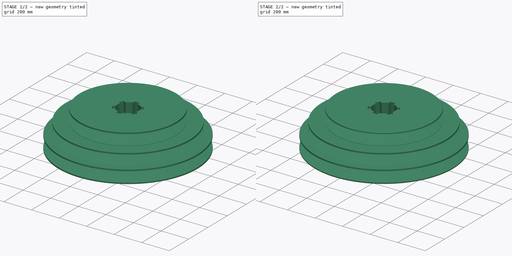
[diagram: build sequence overview — one tinted view per stage of 2, left to right]
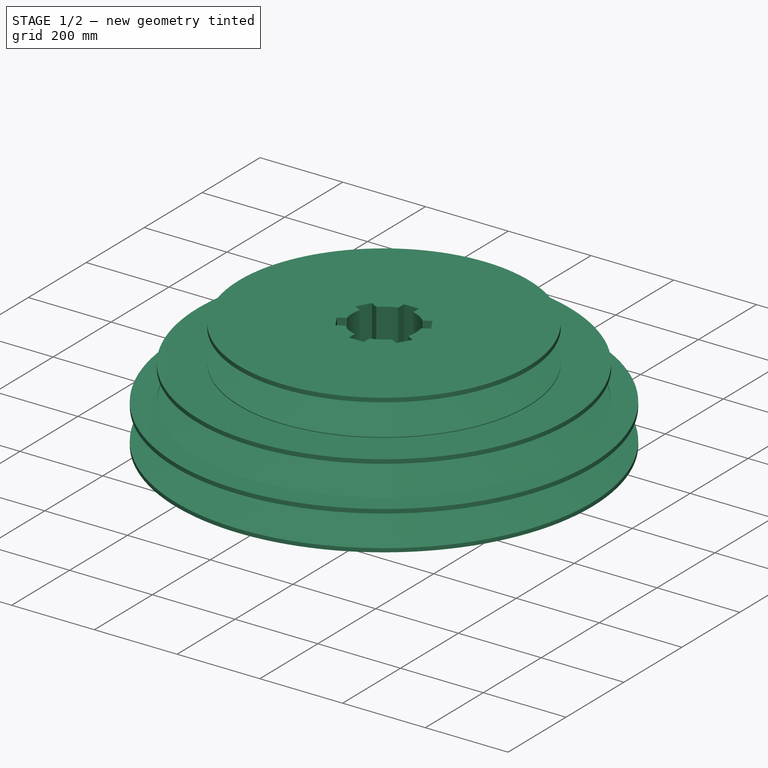
[diagram: stage 1 of 2 — iso view after this stage's code; geometry added in this stage tinted green]
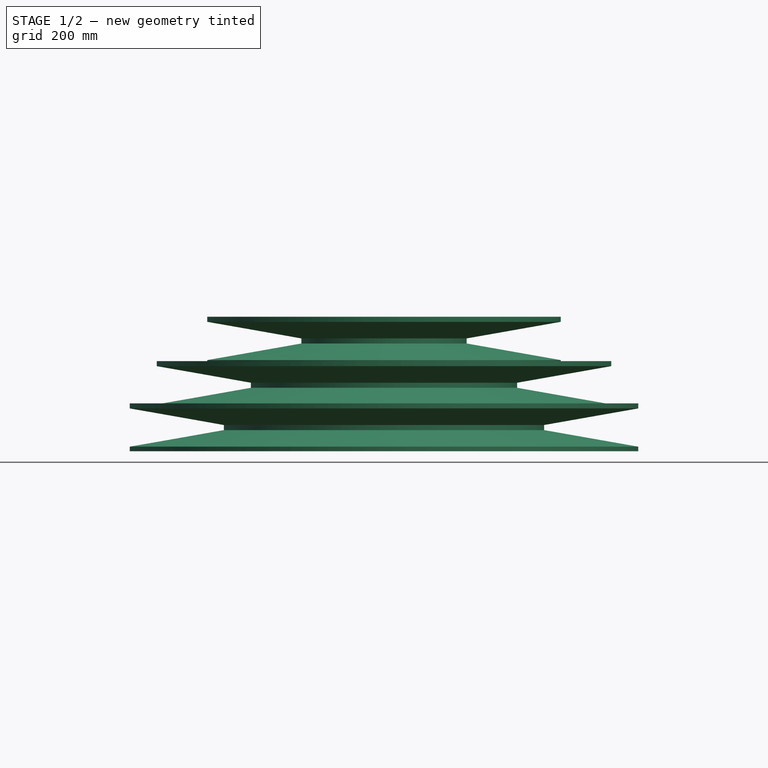
[diagram: stage 1 of 2 — front view after this stage's code; geometry added in this stage tinted green]
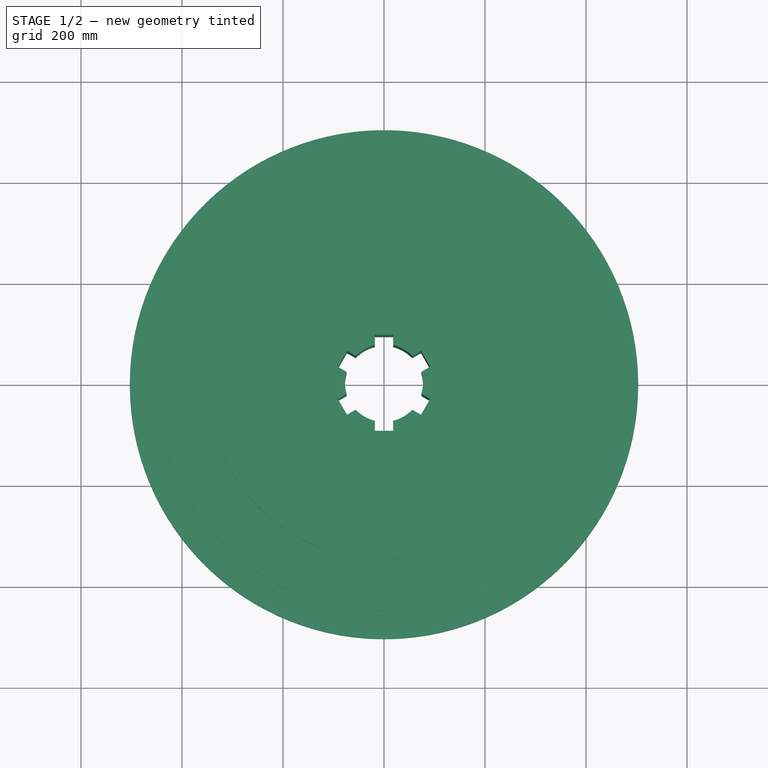
[diagram: stage 1 of 2 — top view after this stage's code; geometry added in this stage tinted green]
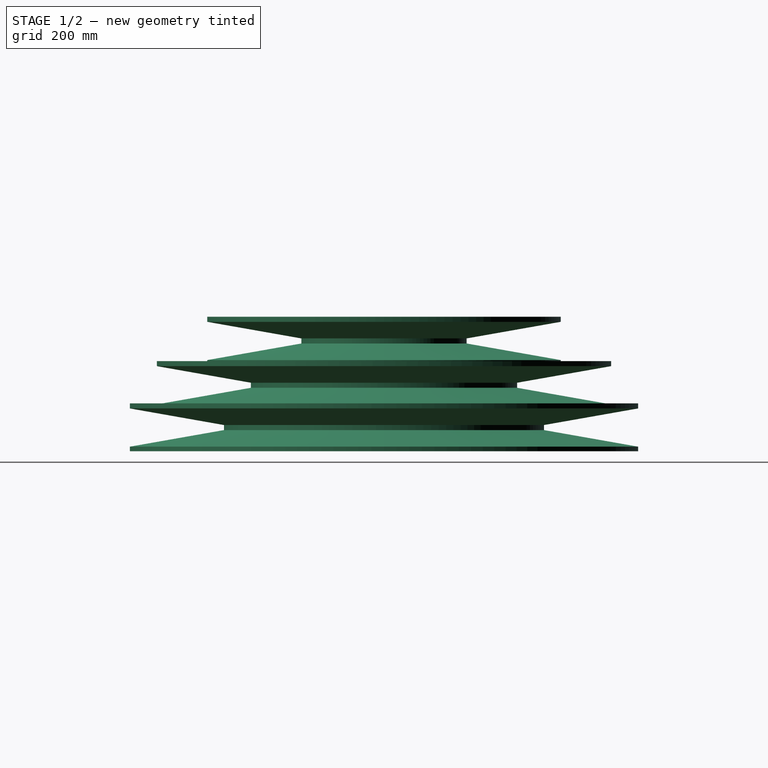
[diagram: stage 1 of 2 — right view after this stage's code; geometry added in this stage tinted green]
FCSTD DOCUMENT  (FreeCAD 0.21R33771 (Git))
Label: shkiv2
License: All rights reserved
LicenseURL: https://en.wikipedia.org/wiki/All_rights_reserved
objects: Sketcher::SketchObject×2, PartDesign::Chamfer×2, PartDesign::Revolution×1, PartDesign::Pocket×1, PartDesign::Body×1
note: 11 computed .brp shape members not serialized (recipe doc carries the construction recipe); baked Part::Feature solids carry a one-line shape summary decoded from their .brp

FEATURE [Sketcher::SketchObject] Sketch
  FullyConstrained = false
  MapMode = 5
  Placement = pos=(0,0,0) rot=(1,0,0;1.5708rad)
  Support = -> [XZ_Plane]
  sketch-geometry (20):
    g0: LineSegment StartX=0 StartY=266.224 StartZ=0 EndX=-350 EndY=266.224 EndZ=0
    g1: LineSegment StartX=-350 StartY=266.224 StartZ=0 EndX=-350 EndY=256.224 EndZ=0
    g2: LineSegment StartX=-350 StartY=256.224 StartZ=0 EndX=-163.581 EndY=223.354 EndZ=0
    g3: LineSegment StartX=-163.581 StartY=223.354 StartZ=0 EndX=-163.581 EndY=213.354 EndZ=0
    g4: LineSegment StartX=-163.581 StartY=213.354 StartZ=0 EndX=-350 EndY=180.483 EndZ=0
    g5: LineSegment StartX=-350 StartY=180.483 StartZ=0 EndX=-350 EndY=178.483 EndZ=0
    g6: LineSegment StartX=-350 StartY=178.483 StartZ=0 EndX=-450 EndY=178.483 EndZ=0
    g7: LineSegment StartX=-450 StartY=178.483 StartZ=0 EndX=-450 EndY=168.483 EndZ=0
    g8: LineSegment StartX=-450 StartY=168.483 StartZ=0 EndX=-263.581 EndY=135.612 EndZ=0
    g9: LineSegment StartX=-263.581 StartY=135.612 StartZ=0 EndX=-263.581 EndY=125.612 EndZ=0
    g10: LineSegment StartX=-263.581 StartY=125.612 StartZ=0 EndX=-450 EndY=92.7414 EndZ=0
    g11: LineSegment StartX=-450 StartY=92.7414 StartZ=0 EndX=-450 EndY=94.7414 EndZ=0
    g12: LineSegment StartX=-450 StartY=94.7414 StartZ=0 EndX=-503.432 EndY=94.7414 EndZ=0
    g13: LineSegment StartX=-503.432 StartY=94.7414 StartZ=0 EndX=-503.432 EndY=84.7414 EndZ=0
    g14: LineSegment StartX=-503.432 StartY=84.7414 StartZ=0 EndX=-317.013 EndY=51.8707 EndZ=0
    g15: LineSegment StartX=-317.013 StartY=51.8707 StartZ=0 EndX=-317.013 EndY=41.8707 EndZ=0
    g16: LineSegment StartX=-317.013 StartY=41.8707 StartZ=0 EndX=-503.432 EndY=9 EndZ=0
    g17: LineSegment StartX=-503.432 StartY=0 StartZ=0 EndX=0 EndY=0 EndZ=0
    g18: LineSegment StartX=0 StartY=266.224 StartZ=0 EndX=0 EndY=0 EndZ=0
    g19: LineSegment StartX=-503.432 StartY=9 StartZ=0 EndX=-503.432 EndY=0 EndZ=0
  constraints (58):
    c: PointOnObject(g0,g-2)
    c: Horizontal(g0)
    c: Coincident(g1,g0)
    c: Vertical(g1)
    c: Coincident(g2,g1)
    c: Coincident(g3,g2)
    c: Vertical(g3)
    c: Horizontal(g6)
    c: Coincident(g10,g9)
    c: Vertical(g11)
    c: Coincident(g12,g11)
    c: Horizontal(g12)
    c: Coincident(g13,g12)
    c: Vertical(g13)
    c: Coincident(g14,g13)
    c: Coincident(g15,g14)
    c: Vertical(g15)
    c: Horizontal(g17)
    c: Coincident(g18,g0)
    c: Coincident(g17,g18)
    c: PointOnObject(g17,g-2)
    c: Vertical(g9)
    c: Vertical(g5)
    c: Vertical(g7)
    c: DistanceY(g1,g1) = 10
    c: Equal(g1,g3)
    c: Equal(g3,g7)
    c: Equal(g7,g9)
    c: Equal(g9,g13)
    c: Equal(g13,g15)
    c: Coincident(g7,g8)
    c: Coincident(g8,g9)
    c: Coincident(g16,g15)
    c: Coincident(g5,g6)
    c: Coincident(g19,g16)
    c: Coincident(g19,g17)
    c: Vertical(g19)
    c: DistanceY(g19,g19) = 9
    c: Coincident(g3,g4)
    c: Equal(g8,g10)
    c: Equal(g10,g14)
    c: Equal(g14,g16)
    c: Equal(g16,g4)
    c: Equal(g4,g2)
    c: Angle(g2,g3) = 1.74533
    c: Angle(g3,g4) = 1.74533
    c: Coincident(g6,g7)
    c: Coincident(g4,g5)
    c: Coincident(g10,g11)
    c: Angle(g8,g9) = 1.74533
    c: Angle(g9,g10) = 1.74533
    c: Angle(g14,g15) = 1.74533
    c: Angle(g15,g16) = 1.74533
    c: Equal(g5,g11)
    c: DistanceY(g5,g4) = 2
    c: Distance(g0) = 350
    c: Distance(g6,g18) = 450
    c: PointOnObject(g17,g-1)
FEATURE [PartDesign::Revolution] Revolution
  Angle = 360
  Axis = (0,-2e-16,1)
  Base = (0,0,0)
  Midplane = true
  Placement = pos=(0,0,0) rot=(1,0,0;1.5708rad)
  Profile = -> Sketch
  ReferenceAxis = -> Sketch [V_Axis]
FEATURE [Sketcher::SketchObject] Sketch001
  FullyConstrained = false
  MapMode = 5
  Placement = pos=(0,-5.91e-14,266.224) rot=(0,0,1;3.14159rad)
  Support = -> [Revolution]
  sketch-geometry (27):
    g0: ArcOfCircle CenterX=0 CenterY=0 CenterZ=0 NormalX=0 NormalY=0 NormalZ=1 AngleXU=0 Radius=77.189 StartAngle=5.99597 EndAngle=6.5704
    g1: LineSegment StartX=18.0768 StartY=-94.9989 StartZ=0 EndX=18.0768 EndY=-75.0424 EndZ=0
    g2: LineSegment StartX=18.0768 StartY=94.9989 StartZ=0 EndX=-18.0768 EndY=94.9989 EndZ=0
    g3: LineSegment StartX=-18.0768 StartY=94.9989 StartZ=0 EndX=-18.0768 EndY=75.0424 EndZ=0
    g4: LineSegment StartX=-18.0768 StartY=-94.9989 StartZ=0 EndX=18.0768 EndY=-94.9989 EndZ=0
    g5: GeomPoint X=0 Y=0 Z=0
    g6: LineSegment StartX=-73.233 StartY=-63.1544 StartZ=0 EndX=-55.9502 EndY=-53.1762 EndZ=0
    g7: LineSegment StartX=91.3099 StartY=31.8445 StartZ=0 EndX=73.233 EndY=63.1544 EndZ=0
    g8: LineSegment StartX=73.233 StartY=63.1544 StartZ=0 EndX=55.9502 EndY=53.1762 EndZ=0
    g9: LineSegment StartX=-91.3099 StartY=-31.8445 StartZ=0 EndX=-73.233 EndY=-63.1544 EndZ=0
    g10: GeomPoint X=0 Y=0 Z=0
    g11: LineSegment StartX=91.3099 StartY=-31.8445 StartZ=0 EndX=74.0271 EndY=-21.8662 EndZ=0
    g12: LineSegment StartX=-91.3099 StartY=31.8445 StartZ=0 EndX=-74.0271 EndY=21.8662 EndZ=0
    g13: LineSegment StartX=73.233 StartY=-63.1544 StartZ=0 EndX=91.3099 EndY=-31.8445 EndZ=0
    g14: GeomPoint X=0 Y=0 Z=0
    g15: LineSegment StartX=55.9502 StartY=-53.1762 StartZ=0 EndX=73.233 EndY=-63.1544 EndZ=0
    g16: LineSegment StartX=-18.0768 StartY=-75.0424 StartZ=0 EndX=-18.0768 EndY=-94.9989 EndZ=0
    g17: LineSegment StartX=-74.0271 StartY=-21.8662 StartZ=0 EndX=-91.3099 EndY=-31.8445 EndZ=0
    g18: ArcOfCircle CenterX=0 CenterY=0 CenterZ=0 NormalX=0 NormalY=0 NormalZ=1 AngleXU=0 Radius=77.189 StartAngle=4.94877 EndAngle=5.5232
    g19: ArcOfCircle CenterX=0 CenterY=0 CenterZ=0 NormalX=0 NormalY=0 NormalZ=1 AngleXU=0 Radius=77.189 StartAngle=3.90158 EndAngle=4.476
    g20: LineSegment StartX=74.0271 StartY=21.8662 StartZ=0 EndX=91.3099 EndY=31.8445 EndZ=0
    g21: LineSegment StartX=18.0768 StartY=75.0424 StartZ=0 EndX=18.0768 EndY=94.9989 EndZ=0
    g22: LineSegment StartX=-55.9502 StartY=53.1762 StartZ=0 EndX=-73.233 EndY=63.1544 EndZ=0
    g23: ArcOfCircle CenterX=0 CenterY=0 CenterZ=0 NormalX=0 NormalY=0 NormalZ=1 AngleXU=0 Radius=77.189 StartAngle=0.759983 EndAngle=1.33441
    g24: ArcOfCircle CenterX=0 CenterY=0 CenterZ=0 NormalX=0 NormalY=0 NormalZ=1 AngleXU=0 Radius=77.189 StartAngle=2.85438 EndAngle=3.42881
    g25: ArcOfCircle CenterX=0 CenterY=0 CenterZ=0 NormalX=0 NormalY=0 NormalZ=1 AngleXU=0 Radius=77.189 StartAngle=1.80718 EndAngle=2.38161
    g26: LineSegment StartX=-91.3099 StartY=31.8445 StartZ=0 EndX=-73.233 EndY=63.1544 EndZ=0
  constraints (71):
    c: Coincident(g0,g-1)
    c: Coincident(g21,g2)
    c: Coincident(g2,g3)
    c: Coincident(g16,g4)
    c: Coincident(g4,g1)
    c: Symmetric(g2,g1,g5)
    c: Coincident(g5,g0)
    c: Coincident(g20,g7)
    c: Coincident(g7,g8)
    c: Coincident(g17,g9)
    c: Coincident(g9,g6)
    c: Symmetric(g7,g6,g10)
    c: Coincident(g10,g0)
    c: Coincident(g15,g13)
    c: Coincident(g13,g11)
    c: Symmetric(g12,g11,g14)
    c: Coincident(g14,g0)
    c: Vertical(g1)
    c: Vertical(g3)
    c: Angle(g-2,g9) = 0.523599
    c: Angle(g13,g-2) = 0.523599
    c: Coincident(g15,g18)
    c: PointOnObject(g12,g0)
    c: Coincident(g19,g16)
    c: Coincident(g18,g1)
    c: Coincident(g0,g18)
    c: Coincident(g24,g17)
    c: Coincident(g19,g6)
    c: Coincident(g0,g19)
    c: Coincident(g11,g0)
    c: Coincident(g0,g20)
    c: Coincident(g0,g23)
    c: PointOnObject(g24,g12)
    c: Coincident(g23,g24)
    c: Coincident(g22,g25)
    c: Coincident(g8,g23)
    c: Coincident(g23,g21)
    c: Coincident(g25,g3)
    c: Coincident(g23,g25)
    c: Equal(g23,g0)
    c: Equal(g0,g18)
    c: Equal(g18,g19)
    c: Equal(g19,g24)
    c: Equal(g12,g22)
    c: Equal(g22,g3)
    c: Equal(g3,g21)
    c: Equal(g21,g8)
    c: Equal(g8,g20)
    c: Equal(g20,g11)
    c: Equal(g11,g15)
    c: Equal(g15,g1)
    c: Equal(g1,g16)
    c: Equal(g16,g6)
    c: Equal(g6,g17)
    c: Equal(g2,g7)
    c: Equal(g7,g13)
    c: Equal(g13,g4)
    c: Equal(g4,g9)
    c: Perpendicular(g16,g4)
    c: Perpendicular(g4,g1)
    c: Perpendicular(g9,g6)
    c: Perpendicular(g9,g17)
    c: Perpendicular(g13,g15)
    c: Perpendicular(g13,g11)
    c: Coincident(g26,g12)
    c: Coincident(g26,g22)
    c: Equal(g26,g2)
    c: Perpendicular(g26,g12)
    c: Perpendicular(g26,g22)
    c: Perpendicular(g7,g8)
    c: Horizontal(g2)
FEATURE [PartDesign::Pocket] Pocket
  BaseFeature = -> Revolution
  Direction = (0,2e-16,-1)
  Length = 5
  Length2 = 5
  Placement = pos=(0,0,0) rot=(1,0,0;1.5708rad)
  Profile = -> Sketch001
  ReferenceAxis = -> Sketch001 [N_Axis]
  Type = 1
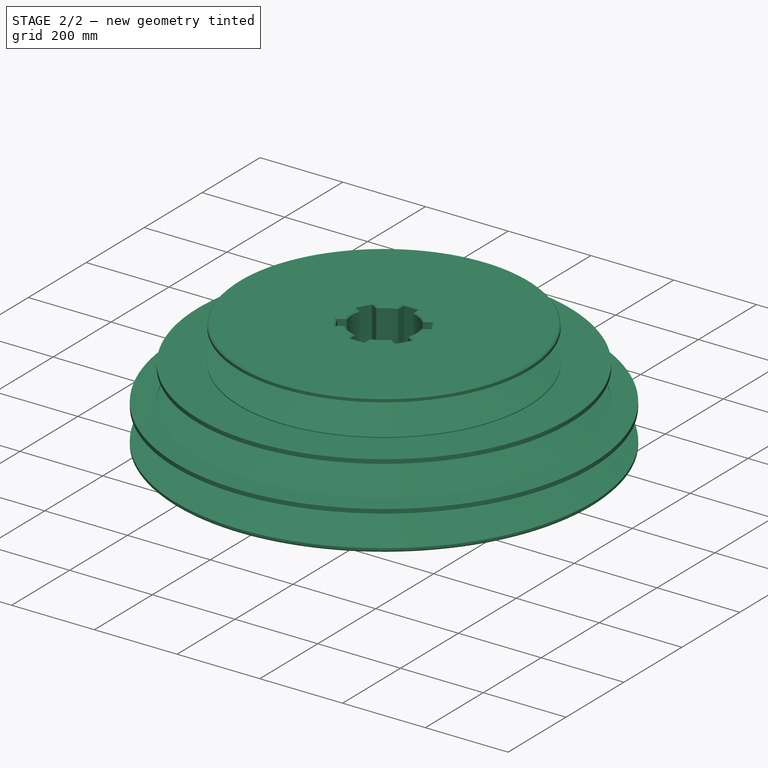
[diagram: stage 2 of 2 — iso view after this stage's code; geometry added in this stage tinted green]
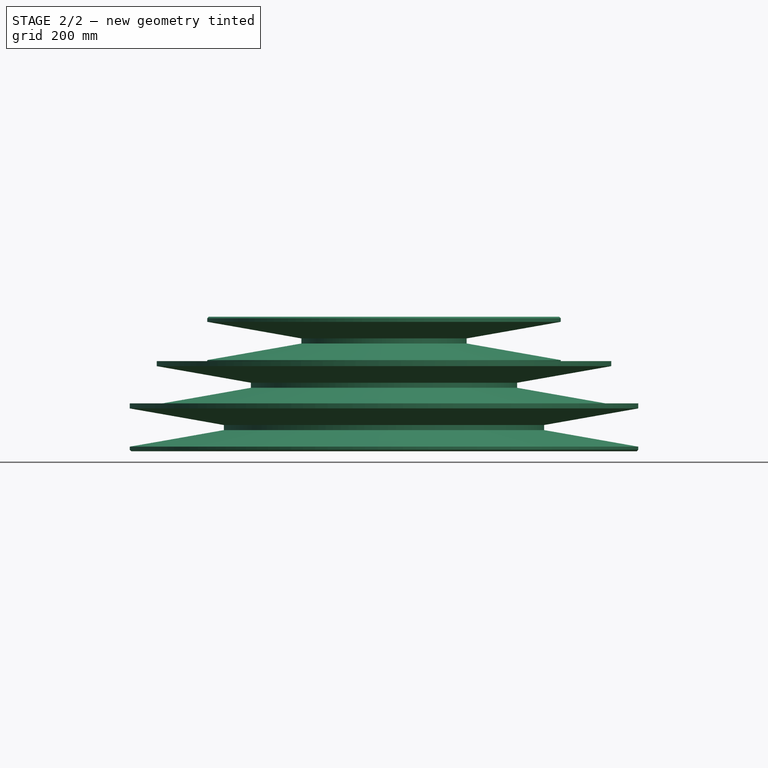
[diagram: stage 2 of 2 — front view after this stage's code; geometry added in this stage tinted green]
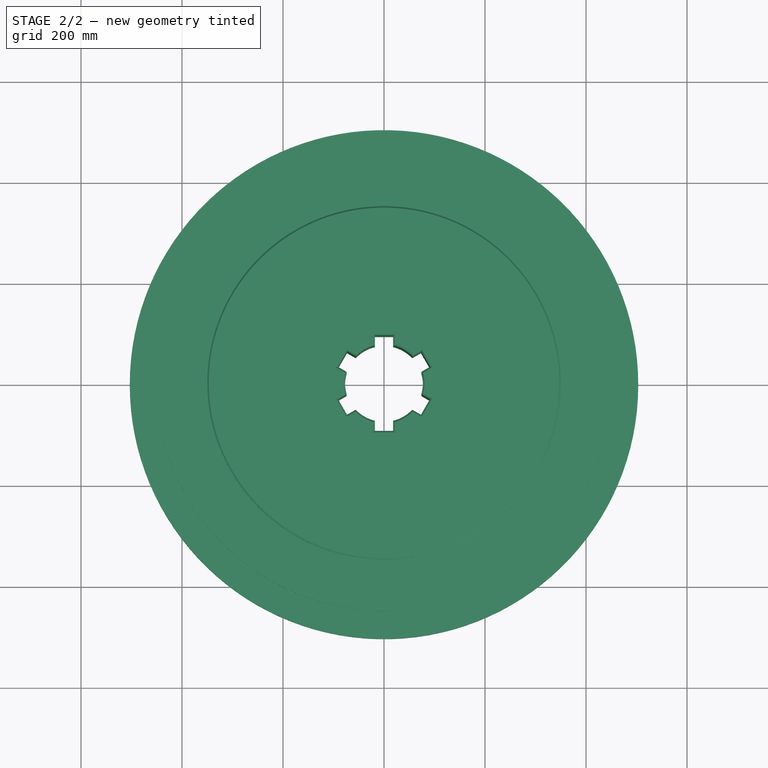
[diagram: stage 2 of 2 — top view after this stage's code; geometry added in this stage tinted green]
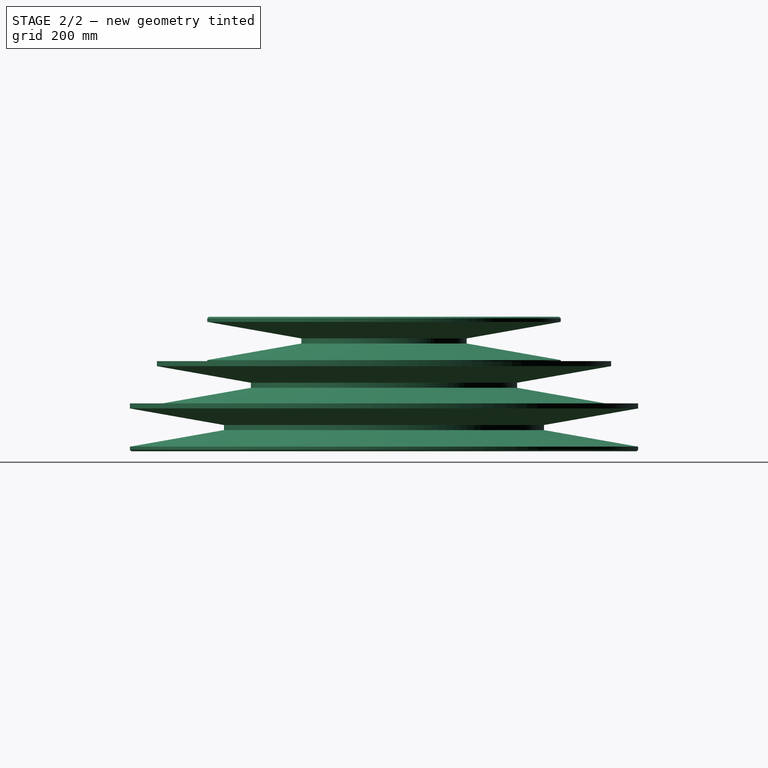
[diagram: stage 2 of 2 — right view after this stage's code; geometry added in this stage tinted green]
FEATURE [PartDesign::Chamfer] Chamfer
  Angle = 45
  Base = -> Pocket [Face1]
  BaseFeature = -> Pocket
  ChamferType = 0
  FlipDirection = false
  Placement = pos=(0,0,0) rot=(1,0,0;1.5708rad)
  Size = 3
  Size2 = 1
  SupportTransform = false
  UseAllEdges = false
FEATURE [PartDesign::Chamfer] Chamfer001
  Angle = 45
  Base = -> Chamfer [Face53]
  BaseFeature = -> Chamfer
  ChamferType = 0
  FlipDirection = false
  Placement = pos=(0,0,0) rot=(1,0,0;1.5708rad)
  Size = 3
  Size2 = 1
  SupportTransform = false
  UseAllEdges = false
FEATURE [PartDesign::Body] Body
  Group = -> [Sketch,Revolution,Sketch001,Pocket,Chamfer,Chamfer001]
  Origin = -> Origin
  Tip = -> Chamfer001
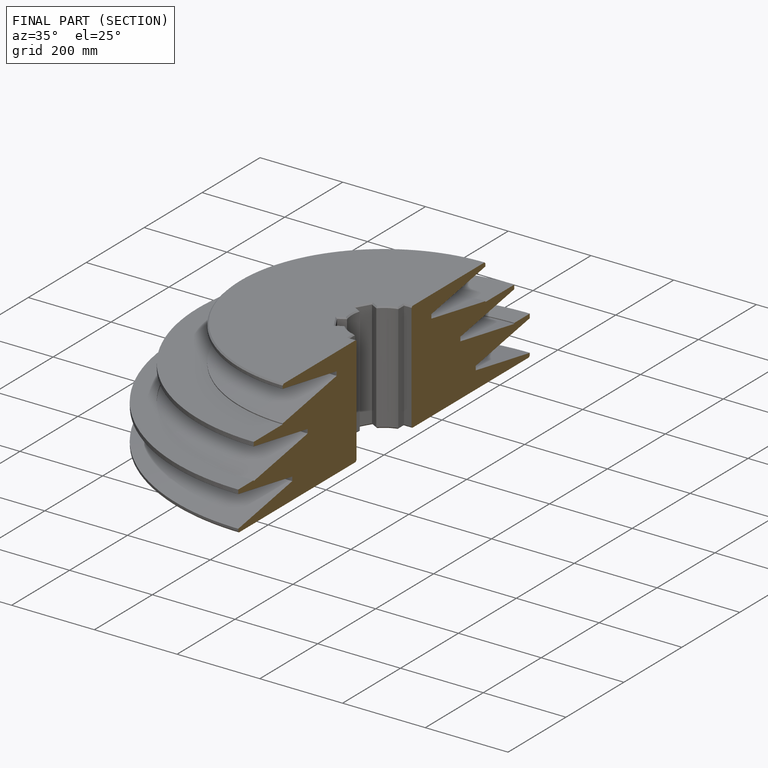
[diagram: finished part — half-section view (interior)]
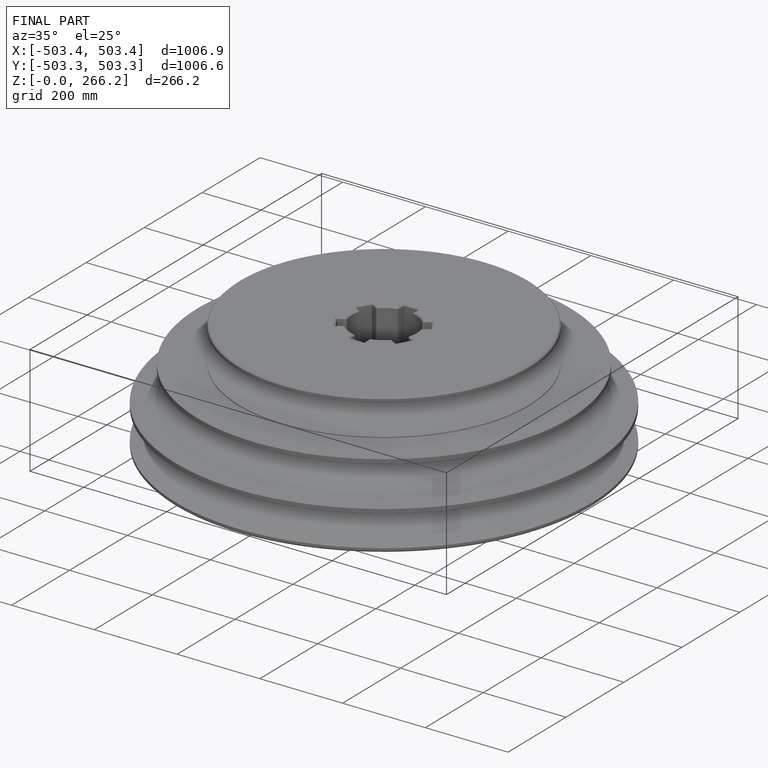
[diagram: finished part — iso view with bounding-box wireframe]
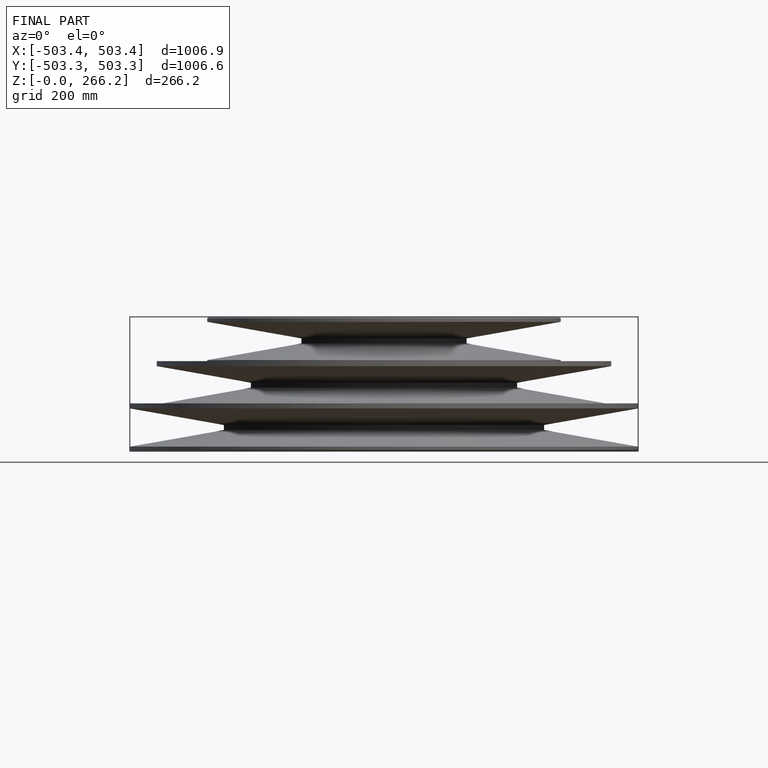
[diagram: finished part — front view with bounding-box wireframe]
